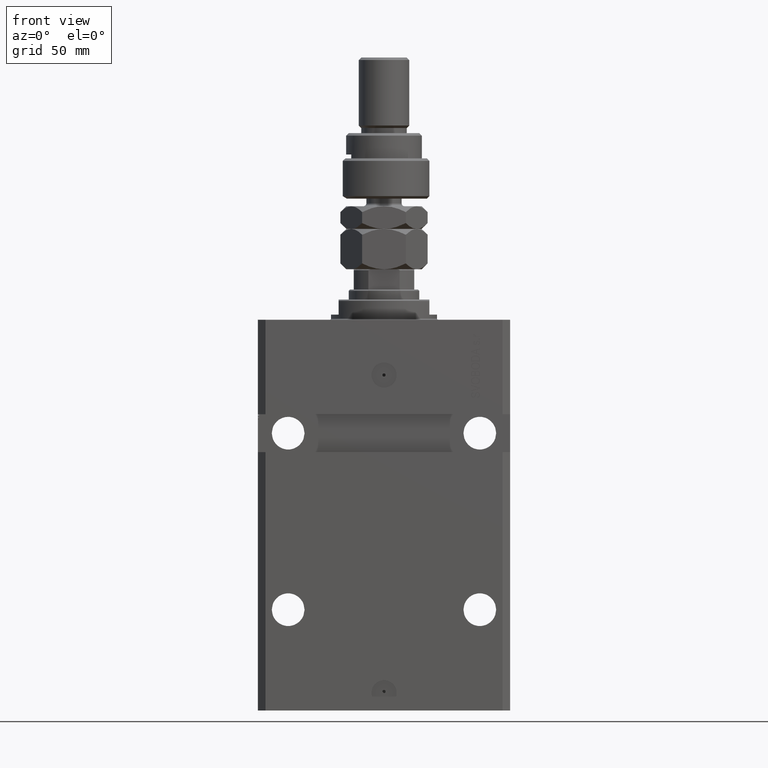
[diagram: clean part render]
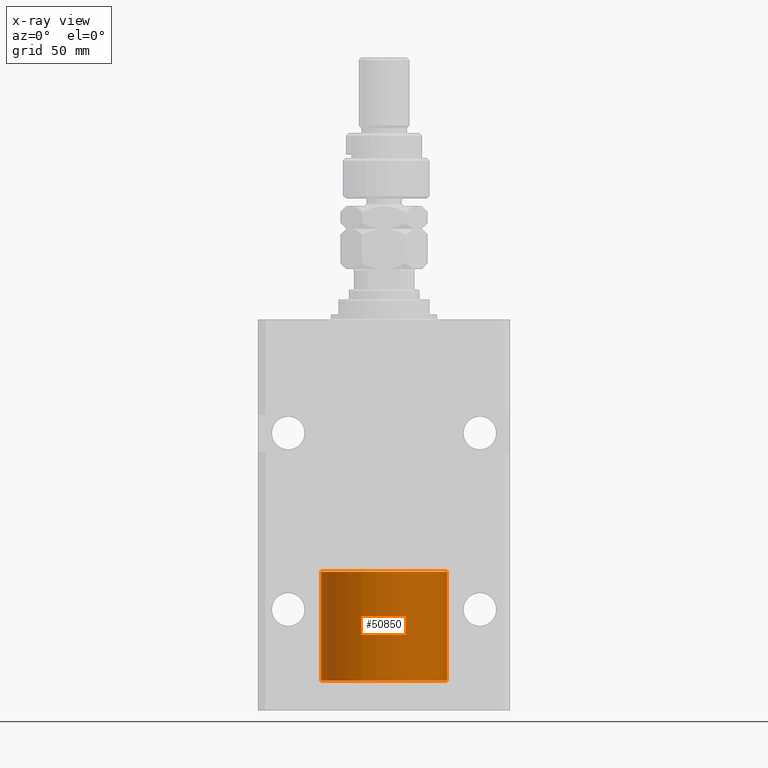
[diagram: x-ray — body ghosted, one internal face saturated and labeled with its STEP entity id]
A machine part, front view, then the same camera in x-ray: the body is ghosted and one INTERNAL B-rep face — a face not visible from any outside direction — is saturated and labeled: STEP entity #50850.
In plain terms, the highlighted cylindrical surface (partial cylindrical patch) has radius 25 mm, axis along (-0, -0, -1).
Its self-contained STEP definition (entity closure, byte-faithful):
#395 = DIRECTION ( 'NONE',  ( 1.000000000000000000, 0.000000000000000000, 0.000000000000000000 ) ) ;
#534 = DIRECTION ( 'NONE',  ( -0.000000000000000000, -0.000000000000000000, -1.000000000000000000 ) ) ;
#1213 = VERTEX_POINT ( 'NONE', #28805 ) ;
#2884 = DIRECTION ( 'NONE',  ( 0.000000000000000000, 0.000000000000000000, 1.000000000000000000 ) ) ;
#3134 = CARTESIAN_POINT ( 'NONE',  ( 0.000000000000000000, 0.000000000000000000, 43.10000000000000142 ) ) ;
#3353 = EDGE_CURVE ( 'NONE', #20497, #1213, #34068, .T. ) ;
#4407 = DIRECTION ( 'NONE',  ( -1.000000000000000000, 0.000000000000000000, 0.000000000000000000 ) ) ;
#4990 = ORIENTED_EDGE ( 'NONE', *, *, #3353, .F. ) ;
#8448 = CARTESIAN_POINT ( 'NONE',  ( -25.00000000000000000, 0.000000000000000000, 43.10000000000000142 ) ) ;
#11858 = EDGE_CURVE ( 'NONE', #1213, #21548, #26021, .T. ) ;
#12590 = AXIS2_PLACEMENT_3D ( 'NONE', #19990, #19748, #395 ) ;
#13290 = EDGE_LOOP ( 'NONE', ( #24868, #4990, #24818, #45735 ) ) ;
#14387 = VECTOR ( 'NONE', #45657, 1000.000000000000000 ) ;
#16020 = CYLINDRICAL_SURFACE ( 'NONE', #16770, 25.00000000000000000 ) ;
#16770 = AXIS2_PLACEMENT_3D ( 'NONE', #34862, #534, #4407 ) ;
#18383 = CIRCLE ( 'NONE', #12590, 25.00000000000000000 ) ;
#19061 = LINE ( 'NONE', #38676, #26116 ) ;
#19748 = DIRECTION ( 'NONE',  ( 0.000000000000000000, 0.000000000000000000, 1.000000000000000000 ) ) ;
#19990 = CARTESIAN_POINT ( 'NONE',  ( 0.000000000000000000, 0.000000000000000000, 0.000000000000000000 ) ) ;
#20449 = EDGE_CURVE ( 'NONE', #20497, #29187, #19061, .T. ) ;
#20497 = VERTEX_POINT ( 'NONE', #8448 ) ;
#20890 = CARTESIAN_POINT ( 'NONE',  ( 25.00000000000000000, 3.061616997868383043E-15, 0.000000000000000000 ) ) ;
#21548 = VERTEX_POINT ( 'NONE', #20890 ) ;
#24818 = ORIENTED_EDGE ( 'NONE', *, *, #20449, .T. ) ;
#24868 = ORIENTED_EDGE ( 'NONE', *, *, #11858, .F. ) ;
#26021 = LINE ( 'NONE', #29380, #14387 ) ;
#26116 = VECTOR ( 'NONE', #31185, 1000.000000000000000 ) ;
#28805 = CARTESIAN_POINT ( 'NONE',  ( 25.00000000000000000, 3.061616997868383043E-15, 43.10000000000000142 ) ) ;
#29187 = VERTEX_POINT ( 'NONE', #48801 ) ;
#29380 = CARTESIAN_POINT ( 'NONE',  ( 25.00000000000000000, 3.061616997868383043E-15, 43.10000000000000142 ) ) ;
#31185 = DIRECTION ( 'NONE',  ( -0.000000000000000000, -0.000000000000000000, -1.000000000000000000 ) ) ;
#34068 = CIRCLE ( 'NONE', #44804, 25.00000000000000000 ) ;
#34862 = CARTESIAN_POINT ( 'NONE',  ( 0.000000000000000000, 0.000000000000000000, 43.10000000000000142 ) ) ;
#38230 = DIRECTION ( 'NONE',  ( 1.000000000000000000, 0.000000000000000000, 0.000000000000000000 ) ) ;
#38676 = CARTESIAN_POINT ( 'NONE',  ( -25.00000000000000000, 0.000000000000000000, 43.10000000000000142 ) ) ;
#38977 = FACE_OUTER_BOUND ( 'NONE', #13290, .T. ) ;
#44804 = AXIS2_PLACEMENT_3D ( 'NONE', #3134, #2884, #38230 ) ;
#45657 = DIRECTION ( 'NONE',  ( -0.000000000000000000, -0.000000000000000000, -1.000000000000000000 ) ) ;
#45735 = ORIENTED_EDGE ( 'NONE', *, *, #49489, .T. ) ;
#48801 = CARTESIAN_POINT ( 'NONE',  ( -25.00000000000000000, 0.000000000000000000, 0.000000000000000000 ) ) ;
#49489 = EDGE_CURVE ( 'NONE', #29187, #21548, #18383, .T. ) ;
#50850 = ADVANCED_FACE ( 'NONE', ( #38977 ), #16020, .T. ) ;